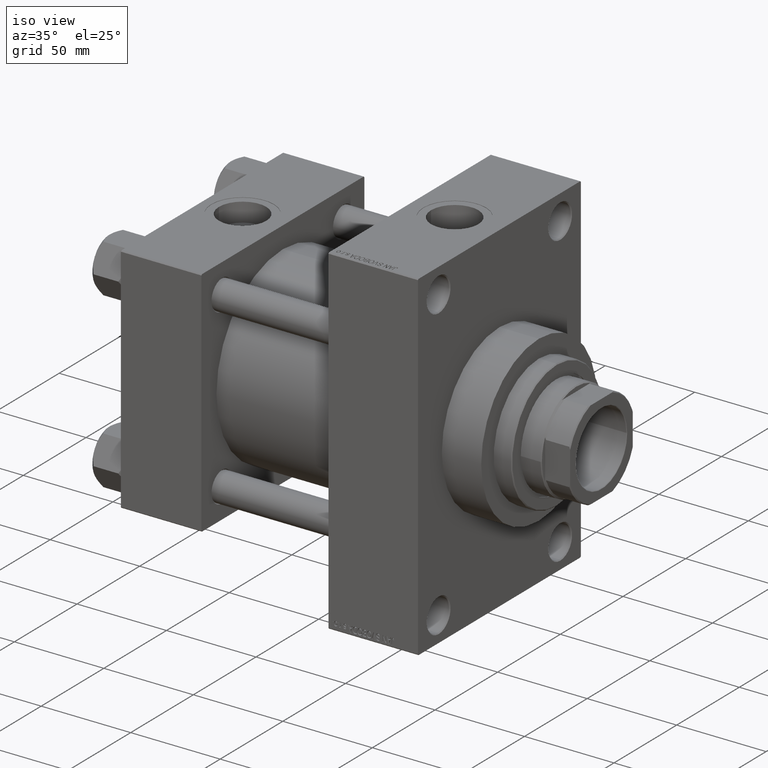
[diagram: clean part render]
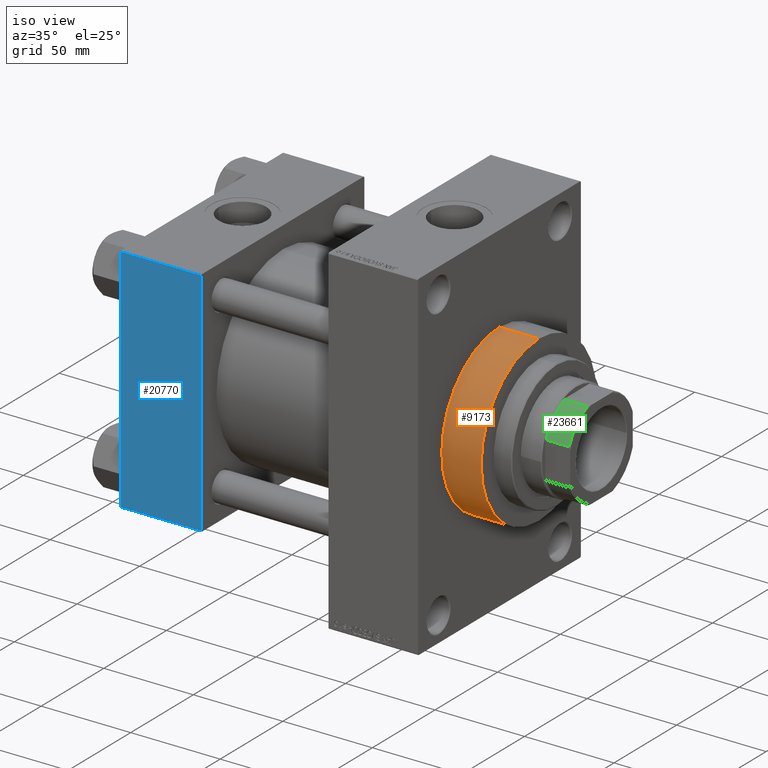
[diagram: same view with three faces highlighted in distinct colors, each labeled with its STEP entity id]
A machine part, iso view with three faces highlighted in distinct colors.
Their STEP definitions:

[orange] entity #9173 — the highlighted cylindrical surface (partial cylindrical patch) has radius 46 mm, axis along (-1, -0, -0).
#604 = CARTESIAN_POINT ( 'NONE',  ( 187.9999999999999716, 5.633375276077824704E-15, -46.00000000000000000 ) ) ;
#1577 = VERTEX_POINT ( 'NONE', #23304 ) ;
#2751 = CARTESIAN_POINT ( 'NONE',  ( 187.9999999999999716, 0.000000000000000000, 46.00000000000000000 ) ) ;
#6795 = CARTESIAN_POINT ( 'NONE',  ( 165.9999999999999716, 0.000000000000000000, 46.00000000000000000 ) ) ;
#7094 = CIRCLE ( 'NONE', #17061, 46.00000000000000000 ) ;
#7602 = LINE ( 'NONE', #604, #38782 ) ;
#8536 = DIRECTION ( 'NONE',  ( 0.000000000000000000, 0.000000000000000000, 1.000000000000000000 ) ) ;
#9173 = ADVANCED_FACE ( 'NONE', ( #38435 ), #34332, .T. ) ;
#9234 = CARTESIAN_POINT ( 'NONE',  ( 187.9999999999999716, 0.000000000000000000, 0.000000000000000000 ) ) ;
#10054 = EDGE_CURVE ( 'NONE', #46997, #22146, #7094, .T. ) ;
#12425 = VERTEX_POINT ( 'NONE', #28041 ) ;
#12759 = ORIENTED_EDGE ( 'NONE', *, *, #29328, .T. ) ;
#13165 = EDGE_CURVE ( 'NONE', #12425, #22146, #7602, .T. ) ;
#13946 = DIRECTION ( 'NONE',  ( 0.000000000000000000, 0.000000000000000000, -1.000000000000000000 ) ) ;
#15293 = VECTOR ( 'NONE', #46930, 1000.000000000000000 ) ;
#15302 = DIRECTION ( 'NONE',  ( -1.000000000000000000, -0.000000000000000000, -0.000000000000000000 ) ) ;
#15863 = DIRECTION ( 'NONE',  ( 1.000000000000000000, 0.000000000000000000, 0.000000000000000000 ) ) ;
#17061 = AXIS2_PLACEMENT_3D ( 'NONE', #34209, #15863, #30588 ) ;
#17077 = CARTESIAN_POINT ( 'NONE',  ( 187.9999999999999716, 0.000000000000000000, 0.000000000000000000 ) ) ;
#17217 = LINE ( 'NONE', #2751, #15293 ) ;
#17550 = CARTESIAN_POINT ( 'NONE',  ( 165.9999999999999716, 5.633375276077824704E-15, -46.00000000000000000 ) ) ;
#19839 = EDGE_CURVE ( 'NONE', #1577, #12425, #46706, .T. ) ;
#21268 = ORIENTED_EDGE ( 'NONE', *, *, #13165, .F. ) ;
#22146 = VERTEX_POINT ( 'NONE', #17550 ) ;
#22792 = ORIENTED_EDGE ( 'NONE', *, *, #10054, .T. ) ;
#23304 = CARTESIAN_POINT ( 'NONE',  ( 187.9999999999999716, 0.000000000000000000, 46.00000000000000000 ) ) ;
#23695 = DIRECTION ( 'NONE',  ( -1.000000000000000000, -0.000000000000000000, -0.000000000000000000 ) ) ;
#28041 = CARTESIAN_POINT ( 'NONE',  ( 187.9999999999999716, 5.633375276077824704E-15, -46.00000000000000000 ) ) ;
#29328 = EDGE_CURVE ( 'NONE', #1577, #46997, #17217, .T. ) ;
#30165 = AXIS2_PLACEMENT_3D ( 'NONE', #9234, #23695, #8536 ) ;
#30489 = AXIS2_PLACEMENT_3D ( 'NONE', #17077, #39059, #13946 ) ;
#30588 = DIRECTION ( 'NONE',  ( 0.000000000000000000, 0.000000000000000000, -1.000000000000000000 ) ) ;
#34032 = ORIENTED_EDGE ( 'NONE', *, *, #19839, .F. ) ;
#34209 = CARTESIAN_POINT ( 'NONE',  ( 165.9999999999999716, 0.000000000000000000, 0.000000000000000000 ) ) ;
#34332 = CYLINDRICAL_SURFACE ( 'NONE', #30165, 46.00000000000000000 ) ;
#38435 = FACE_OUTER_BOUND ( 'NONE', #41701, .T. ) ;
#38782 = VECTOR ( 'NONE', #15302, 1000.000000000000000 ) ;
#39059 = DIRECTION ( 'NONE',  ( 1.000000000000000000, 0.000000000000000000, 0.000000000000000000 ) ) ;
#41701 = EDGE_LOOP ( 'NONE', ( #21268, #34032, #12759, #22792 ) ) ;
#46706 = CIRCLE ( 'NONE', #30489, 46.00000000000000000 ) ;
#46930 = DIRECTION ( 'NONE',  ( -1.000000000000000000, -0.000000000000000000, -0.000000000000000000 ) ) ;
#46997 = VERTEX_POINT ( 'NONE', #6795 ) ;

[blue] entity #20770 — the highlighted planar face has unit normal (0, 1, 0).
#954 = LINE ( 'NONE', #31084, #11129 ) ;
#3181 = DIRECTION ( 'NONE',  ( 0.000000000000000000, 0.000000000000000000, -1.000000000000000000 ) ) ;
#3353 = CARTESIAN_POINT ( 'NONE',  ( 45.00000000000000000, -65.00000000000000000, 64.50000000000000000 ) ) ;
#4615 = EDGE_CURVE ( 'NONE', #45378, #36959, #12786, .T. ) ;
#10672 = FACE_OUTER_BOUND ( 'NONE', #21394, .T. ) ;
#11129 = VECTOR ( 'NONE', #12521, 1000.000000000000000 ) ;
#11152 = DIRECTION ( 'NONE',  ( -0.000000000000000000, 1.000000000000000000, 0.000000000000000000 ) ) ;
#11285 = VECTOR ( 'NONE', #3181, 1000.000000000000000 ) ;
#12047 = AXIS2_PLACEMENT_3D ( 'NONE', #14273, #11152, #25852 ) ;
#12488 = VERTEX_POINT ( 'NONE', #23470 ) ;
#12521 = DIRECTION ( 'NONE',  ( 1.000000000000000000, 0.000000000000000000, 0.000000000000000000 ) ) ;
#12786 = LINE ( 'NONE', #28439, #24717 ) ;
#13851 = ORIENTED_EDGE ( 'NONE', *, *, #15811, .T. ) ;
#14273 = CARTESIAN_POINT ( 'NONE',  ( 45.00000000000000000, -65.00000000000000000, 65.00000000000000000 ) ) ;
#15713 = VECTOR ( 'NONE', #39249, 1000.000000000000000 ) ;
#15811 = EDGE_CURVE ( 'NONE', #43562, #36959, #954, .T. ) ;
#16268 = ORIENTED_EDGE ( 'NONE', *, *, #43464, .T. ) ;
#16788 = CARTESIAN_POINT ( 'NONE',  ( 45.00000000000000000, -65.00000000000000000, 64.50000000000000000 ) ) ;
#17748 = CARTESIAN_POINT ( 'NONE',  ( 0.000000000000000000, -65.00000000000000000, -64.49999999999991473 ) ) ;
#20770 = ADVANCED_FACE ( 'NONE', ( #10672 ), #44213, .F. ) ;
#21394 = EDGE_LOOP ( 'NONE', ( #45768, #13851, #31665, #16268 ) ) ;
#23470 = CARTESIAN_POINT ( 'NONE',  ( 0.000000000000000000, -65.00000000000000000, 64.50000000000000000 ) ) ;
#24070 = CARTESIAN_POINT ( 'NONE',  ( 45.00000000000000000, -65.00000000000000000, -64.49999999999991473 ) ) ;
#24717 = VECTOR ( 'NONE', #42231, 1000.000000000000000 ) ;
#25852 = DIRECTION ( 'NONE',  ( 0.000000000000000000, -0.000000000000000000, 1.000000000000000000 ) ) ;
#28439 = CARTESIAN_POINT ( 'NONE',  ( 45.00000000000000000, -65.00000000000000000, 65.00000000000000000 ) ) ;
#31084 = CARTESIAN_POINT ( 'NONE',  ( 45.00000000000000000, -65.00000000000000000, -64.49999999999991473 ) ) ;
#31665 = ORIENTED_EDGE ( 'NONE', *, *, #4615, .F. ) ;
#33336 = LINE ( 'NONE', #36723, #11285 ) ;
#35147 = LINE ( 'NONE', #16788, #15713 ) ;
#36723 = CARTESIAN_POINT ( 'NONE',  ( 0.000000000000000000, -65.00000000000000000, 65.00000000000000000 ) ) ;
#36959 = VERTEX_POINT ( 'NONE', #24070 ) ;
#39249 = DIRECTION ( 'NONE',  ( -1.000000000000000000, 0.000000000000000000, 0.000000000000000000 ) ) ;
#42231 = DIRECTION ( 'NONE',  ( 0.000000000000000000, 0.000000000000000000, -1.000000000000000000 ) ) ;
#43464 = EDGE_CURVE ( 'NONE', #45378, #12488, #35147, .T. ) ;
#43562 = VERTEX_POINT ( 'NONE', #17748 ) ;
#44213 = PLANE ( 'NONE',  #12047 ) ;
#45378 = VERTEX_POINT ( 'NONE', #3353 ) ;
#45768 = ORIENTED_EDGE ( 'NONE', *, *, #45920, .T. ) ;
#45920 = EDGE_CURVE ( 'NONE', #12488, #43562, #33336, .T. ) ;

[green] entity #23661 — the highlighted cylindrical surface (partial cylindrical patch) has radius 27 mm, axis along (1, 0, 0).
#412 = EDGE_CURVE ( 'NONE', #46144, #40100, #46226, .T. ) ;
#1031 = ORIENTED_EDGE ( 'NONE', *, *, #412, .T. ) ;
#1216 = AXIS2_PLACEMENT_3D ( 'NONE', #4599, #20952, #24340 ) ;
#2297 = DIRECTION ( 'NONE',  ( -0.000000000000000000, -0.000000000000000000, 1.000000000000000000 ) ) ;
#3422 = DIRECTION ( 'NONE',  ( -1.000000000000000000, 8.881784197001252323E-16, 0.000000000000000000 ) ) ;
#4599 = CARTESIAN_POINT ( 'NONE',  ( 0.000000000000000000, 0.000000000000000000, -0.001000000000001000089 ) ) ;
#4778 = CARTESIAN_POINT ( 'NONE',  ( 24.99999999999999645, -10.19803902718556188, 164.5000000000000000 ) ) ;
#5697 = EDGE_CURVE ( 'NONE', #7714, #46144, #20771, .T. ) ;
#7041 = LINE ( 'NONE', #7515, #12508 ) ;
#7515 = CARTESIAN_POINT ( 'NONE',  ( 10.19803902718555655, -25.00000000000000000, -0.001000000000001000089 ) ) ;
#7714 = VERTEX_POINT ( 'NONE', #46038 ) ;
#8043 = ORIENTED_EDGE ( 'NONE', *, *, #15243, .T. ) ;
#12508 = VECTOR ( 'NONE', #47350, 1000.000000000000000 ) ;
#15243 = EDGE_CURVE ( 'NONE', #40100, #38716, #41908, .T. ) ;
#16168 = AXIS2_PLACEMENT_3D ( 'NONE', #43737, #25369, #3422 ) ;
#17435 = CARTESIAN_POINT ( 'NONE',  ( 10.19803902718555655, -25.00000000000000000, 177.5000000000000284 ) ) ;
#20771 = CIRCLE ( 'NONE', #16168, 26.99999999999999645 ) ;
#20952 = DIRECTION ( 'NONE',  ( -0.000000000000000000, -0.000000000000000000, 1.000000000000000000 ) ) ;
#21401 = ORIENTED_EDGE ( 'NONE', *, *, #42925, .F. ) ;
#22927 = FACE_OUTER_BOUND ( 'NONE', #25258, .T. ) ;
#23661 = ADVANCED_FACE ( 'NONE', ( #22927 ), #37662, .T. ) ;
#24340 = DIRECTION ( 'NONE',  ( 1.000000000000000000, 0.000000000000000000, 0.000000000000000000 ) ) ;
#25258 = EDGE_LOOP ( 'NONE', ( #1031, #8043, #21401, #33028 ) ) ;
#25369 = DIRECTION ( 'NONE',  ( -0.000000000000000000, -0.000000000000000000, 1.000000000000000000 ) ) ;
#28071 = DIRECTION ( 'NONE',  ( 1.000000000000000000, 0.000000000000000000, 0.000000000000000000 ) ) ;
#28843 = CARTESIAN_POINT ( 'NONE',  ( 24.99999999999999645, -10.19803902718556188, 177.5000000000000284 ) ) ;
#33028 = ORIENTED_EDGE ( 'NONE', *, *, #5697, .T. ) ;
#37662 = CYLINDRICAL_SURFACE ( 'NONE', #1216, 26.99999999999999645 ) ;
#38716 = VERTEX_POINT ( 'NONE', #17435 ) ;
#40100 = VERTEX_POINT ( 'NONE', #28843 ) ;
#41908 = CIRCLE ( 'NONE', #47339, 26.99999999999999645 ) ;
#42102 = CARTESIAN_POINT ( 'NONE',  ( 0.000000000000000000, 0.000000000000000000, 177.5000000000000284 ) ) ;
#42601 = CARTESIAN_POINT ( 'NONE',  ( 24.99999999999999645, -10.19803902718556188, -0.001000000000001000089 ) ) ;
#42925 = EDGE_CURVE ( 'NONE', #7714, #38716, #7041, .T. ) ;
#43053 = DIRECTION ( 'NONE',  ( -0.000000000000000000, -0.000000000000000000, -1.000000000000000000 ) ) ;
#43737 = CARTESIAN_POINT ( 'NONE',  ( 0.000000000000000000, 0.000000000000000000, 164.5000000000000000 ) ) ;
#43857 = VECTOR ( 'NONE', #2297, 1000.000000000000000 ) ;
#46038 = CARTESIAN_POINT ( 'NONE',  ( 10.19803902718555655, -25.00000000000000000, 164.5000000000000000 ) ) ;
#46144 = VERTEX_POINT ( 'NONE', #4778 ) ;
#46226 = LINE ( 'NONE', #42601, #43857 ) ;
#47339 = AXIS2_PLACEMENT_3D ( 'NONE', #42102, #43053, #28071 ) ;
#47350 = DIRECTION ( 'NONE',  ( -0.000000000000000000, -0.000000000000000000, 1.000000000000000000 ) ) ;